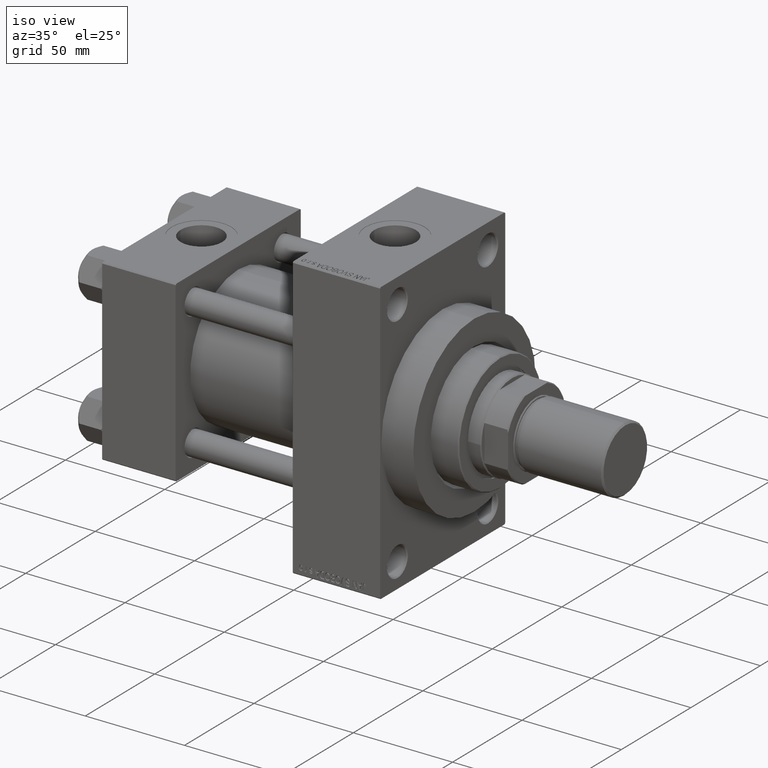
[diagram: clean part render]
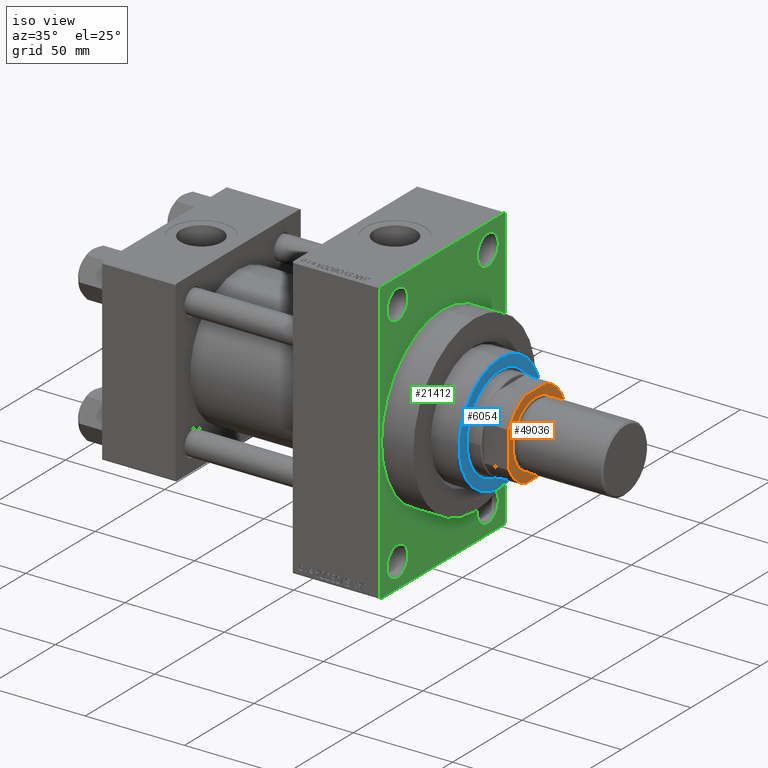
[diagram: same view with three faces highlighted in distinct colors, each labeled with its STEP entity id]
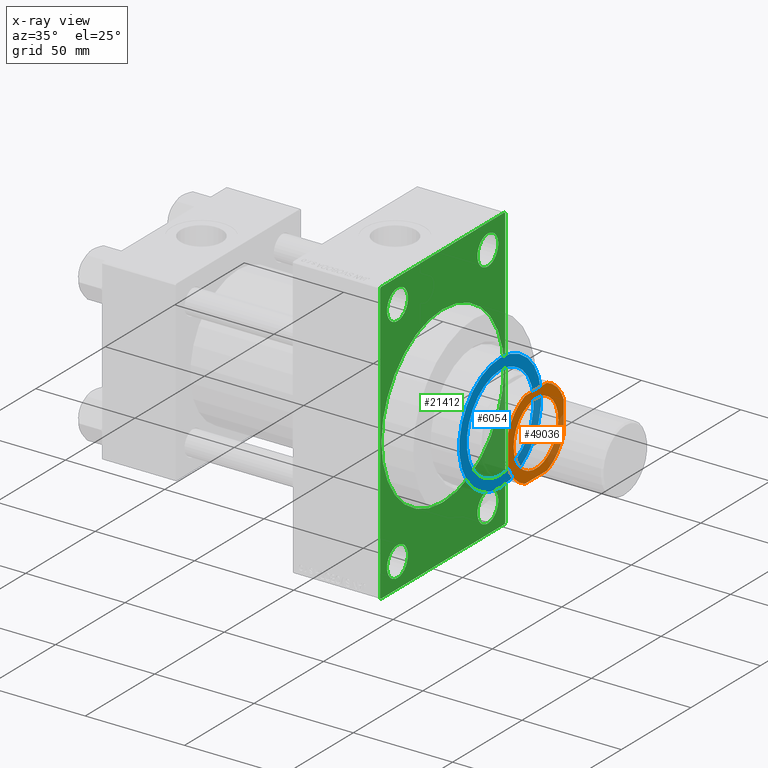
[diagram: x-ray of the same camera — body ghosted, the three highlighted faces saturated]
A machine part, iso view with three faces highlighted in distinct colors.
The next image is the same camera in x-ray (body ghosted, the three faces saturated) — at least one of them is partly hidden behind the body in this view.
Their STEP definitions:

[orange] entity #49036 — the highlighted planar face has unit normal (1, 0, 0).
#6 = CARTESIAN_POINT ( 'NONE',  ( 0.000000000000000000, 0.000000000000000000, 150.0000000000000284 ) ) ;
#97 = EDGE_LOOP ( 'NONE', ( #25113, #18557 ) ) ;
#490 = DIRECTION ( 'NONE',  ( 1.000000000000000000, 0.000000000000000000, 0.000000000000000000 ) ) ;
#755 = CARTESIAN_POINT ( 'NONE',  ( 0.000000000000000000, 0.000000000000000000, 150.0000000000000284 ) ) ;
#1407 = CARTESIAN_POINT ( 'NONE',  ( -20.00000000000000000, -7.889866919029812742, 150.0000000000000284 ) ) ;
#2478 = ORIENTED_EDGE ( 'NONE', *, *, #31564, .T. ) ;
#3204 = CIRCLE ( 'NONE', #4837, 16.05000000000002203 ) ;
#3367 = DIRECTION ( 'NONE',  ( -0.000000000000000000, 0.000000000000000000, 1.000000000000000000 ) ) ;
#4064 = EDGE_CURVE ( 'NONE', #39845, #41002, #34109, .T. ) ;
#4402 = CARTESIAN_POINT ( 'NONE',  ( 0.000000000000000000, 0.000000000000000000, 150.0000000000000284 ) ) ;
#4837 = AXIS2_PLACEMENT_3D ( 'NONE', #33293, #29282, #10701 ) ;
#4985 = DIRECTION ( 'NONE',  ( 1.734723475976807094E-16, -1.000000000000000000, 0.000000000000000000 ) ) ;
#6907 = ORIENTED_EDGE ( 'NONE', *, *, #7904, .T. ) ;
#7079 = AXIS2_PLACEMENT_3D ( 'NONE', #30050, #32835, #45391 ) ;
#7322 = PLANE ( 'NONE',  #9237 ) ;
#7342 = CARTESIAN_POINT ( 'NONE',  ( -19.99999999999999645, -20.00000000000000000, 150.0000000000000284 ) ) ;
#7904 = EDGE_CURVE ( 'NONE', #48579, #44395, #47942, .T. ) ;
#9237 = AXIS2_PLACEMENT_3D ( 'NONE', #6, #31147, #490 ) ;
#9617 = CARTESIAN_POINT ( 'NONE',  ( 16.05000000000002203, 0.000000000000000000, 150.0000000000000284 ) ) ;
#10701 = DIRECTION ( 'NONE',  ( 1.000000000000000000, 0.000000000000000000, 0.000000000000000000 ) ) ;
#11739 = AXIS2_PLACEMENT_3D ( 'NONE', #755, #46271, #46016 ) ;
#13253 = VECTOR ( 'NONE', #41790, 1000.000000000000000 ) ;
#13350 = CIRCLE ( 'NONE', #11739, 21.49999999999996447 ) ;
#13531 = LINE ( 'NONE', #28846, #46983 ) ;
#13803 = ORIENTED_EDGE ( 'NONE', *, *, #24491, .T. ) ;
#13876 = DIRECTION ( 'NONE',  ( 1.000000000000000000, 0.000000000000000000, 0.000000000000000000 ) ) ;
#14871 = AXIS2_PLACEMENT_3D ( 'NONE', #17043, #32360, #47702 ) ;
#15722 = DIRECTION ( 'NONE',  ( -1.734723475976807094E-16, 1.000000000000000000, -0.000000000000000000 ) ) ;
#17043 = CARTESIAN_POINT ( 'NONE',  ( 0.000000000000000000, 0.000000000000000000, 150.0000000000000284 ) ) ;
#17519 = VERTEX_POINT ( 'NONE', #44468 ) ;
#18557 = ORIENTED_EDGE ( 'NONE', *, *, #22583, .T. ) ;
#19003 = LINE ( 'NONE', #34319, #30264 ) ;
#19492 = DIRECTION ( 'NONE',  ( -0.000000000000000000, 0.000000000000000000, 1.000000000000000000 ) ) ;
#22583 = EDGE_CURVE ( 'NONE', #47442, #34347, #36506, .T. ) ;
#23627 = FACE_BOUND ( 'NONE', #97, .T. ) ;
#24391 = EDGE_CURVE ( 'NONE', #41002, #45623, #25688, .T. ) ;
#24491 = EDGE_CURVE ( 'NONE', #45623, #41853, #13350, .T. ) ;
#25113 = ORIENTED_EDGE ( 'NONE', *, *, #36498, .T. ) ;
#25688 = LINE ( 'NONE', #7342, #47850 ) ;
#25939 = ORIENTED_EDGE ( 'NONE', *, *, #4064, .T. ) ;
#25990 = EDGE_CURVE ( 'NONE', #44395, #39845, #13531, .T. ) ;
#26549 = DIRECTION ( 'NONE',  ( 1.000000000000000000, 0.000000000000000000, 0.000000000000000000 ) ) ;
#26657 = ORIENTED_EDGE ( 'NONE', *, *, #24391, .T. ) ;
#28623 = CARTESIAN_POINT ( 'NONE',  ( -7.889866919029809189, -20.00000000000000000, 150.0000000000000284 ) ) ;
#28846 = CARTESIAN_POINT ( 'NONE',  ( -20.00000000000000355, 20.00000000000000000, 150.0000000000000284 ) ) ;
#29282 = DIRECTION ( 'NONE',  ( 0.000000000000000000, -0.000000000000000000, -1.000000000000000000 ) ) ;
#29983 = CARTESIAN_POINT ( 'NONE',  ( 20.00000000000000000, -7.889866919029643100, 150.0000000000000284 ) ) ;
#30050 = CARTESIAN_POINT ( 'NONE',  ( 0.000000000000000000, 0.000000000000000000, 150.0000000000000284 ) ) ;
#30264 = VECTOR ( 'NONE', #15722, 1000.000000000000000 ) ;
#30655 = FACE_OUTER_BOUND ( 'NONE', #33990, .T. ) ;
#30700 = EDGE_CURVE ( 'NONE', #41853, #39908, #19003, .T. ) ;
#31147 = DIRECTION ( 'NONE',  ( -0.000000000000000000, 0.000000000000000000, 1.000000000000000000 ) ) ;
#31564 = EDGE_CURVE ( 'NONE', #39908, #17519, #36734, .T. ) ;
#32360 = DIRECTION ( 'NONE',  ( 0.000000000000000000, -0.000000000000000000, -1.000000000000000000 ) ) ;
#32835 = DIRECTION ( 'NONE',  ( -0.000000000000000000, 0.000000000000000000, 1.000000000000000000 ) ) ;
#33293 = CARTESIAN_POINT ( 'NONE',  ( 0.000000000000000000, 0.000000000000000000, 150.0000000000000284 ) ) ;
#33990 = EDGE_LOOP ( 'NONE', ( #42284, #2478, #35991, #6907, #49495, #25939, #26657, #13803 ) ) ;
#34109 = CIRCLE ( 'NONE', #42145, 21.50000000000002132 ) ;
#34319 = CARTESIAN_POINT ( 'NONE',  ( 19.99999999999999645, 20.00000000000000000, 150.0000000000000284 ) ) ;
#34347 = VERTEX_POINT ( 'NONE', #9617 ) ;
#35991 = ORIENTED_EDGE ( 'NONE', *, *, #48426, .T. ) ;
#36498 = EDGE_CURVE ( 'NONE', #34347, #47442, #3204, .T. ) ;
#36506 = CIRCLE ( 'NONE', #14871, 16.05000000000002203 ) ;
#36734 = CIRCLE ( 'NONE', #7079, 21.50000000000002132 ) ;
#37816 = CARTESIAN_POINT ( 'NONE',  ( 0.000000000000000000, 0.000000000000000000, 150.0000000000000284 ) ) ;
#38264 = CARTESIAN_POINT ( 'NONE',  ( 20.00000000000000000, 7.889866919029812742, 150.0000000000000284 ) ) ;
#39259 = CARTESIAN_POINT ( 'NONE',  ( -7.889866919029809189, 20.00000000000000000, 150.0000000000000284 ) ) ;
#39845 = VERTEX_POINT ( 'NONE', #1407 ) ;
#39908 = VERTEX_POINT ( 'NONE', #38264 ) ;
#41002 = VERTEX_POINT ( 'NONE', #28623 ) ;
#41520 = AXIS2_PLACEMENT_3D ( 'NONE', #37816, #3367, #45600 ) ;
#41548 = CARTESIAN_POINT ( 'NONE',  ( -20.00000000000000355, 20.00000000000000000, 150.0000000000000284 ) ) ;
#41790 = DIRECTION ( 'NONE',  ( -1.000000000000000000, -0.000000000000000000, -0.000000000000000000 ) ) ;
#41853 = VERTEX_POINT ( 'NONE', #29983 ) ;
#42145 = AXIS2_PLACEMENT_3D ( 'NONE', #4402, #19492, #26549 ) ;
#42284 = ORIENTED_EDGE ( 'NONE', *, *, #30700, .T. ) ;
#42636 = CARTESIAN_POINT ( 'NONE',  ( 7.889866919029648429, -20.00000000000000000, 150.0000000000000284 ) ) ;
#44395 = VERTEX_POINT ( 'NONE', #46219 ) ;
#44468 = CARTESIAN_POINT ( 'NONE',  ( 7.889866919029809189, 20.00000000000000000, 150.0000000000000284 ) ) ;
#45308 = LINE ( 'NONE', #41548, #13253 ) ;
#45391 = DIRECTION ( 'NONE',  ( 1.000000000000000000, 0.000000000000000000, 0.000000000000000000 ) ) ;
#45600 = DIRECTION ( 'NONE',  ( 1.000000000000000000, 0.000000000000000000, 0.000000000000000000 ) ) ;
#45623 = VERTEX_POINT ( 'NONE', #42636 ) ;
#46016 = DIRECTION ( 'NONE',  ( 1.000000000000000000, 0.000000000000000000, 0.000000000000000000 ) ) ;
#46219 = CARTESIAN_POINT ( 'NONE',  ( -20.00000000000000000, 7.889866919029805636, 150.0000000000000284 ) ) ;
#46271 = DIRECTION ( 'NONE',  ( -0.000000000000000000, 0.000000000000000000, 1.000000000000000000 ) ) ;
#46983 = VECTOR ( 'NONE', #4985, 1000.000000000000000 ) ;
#47442 = VERTEX_POINT ( 'NONE', #48901 ) ;
#47702 = DIRECTION ( 'NONE',  ( 1.000000000000000000, 0.000000000000000000, 0.000000000000000000 ) ) ;
#47850 = VECTOR ( 'NONE', #13876, 1000.000000000000000 ) ;
#47942 = CIRCLE ( 'NONE', #41520, 21.50000000000002132 ) ;
#48426 = EDGE_CURVE ( 'NONE', #17519, #48579, #45308, .T. ) ;
#48579 = VERTEX_POINT ( 'NONE', #39259 ) ;
#48901 = CARTESIAN_POINT ( 'NONE',  ( -16.05000000000002203, 1.965558112631504571E-15, 150.0000000000000284 ) ) ;
#49036 = ADVANCED_FACE ( 'NONE', ( #23627, #30655 ), #7322, .T. ) ;
#49495 = ORIENTED_EDGE ( 'NONE', *, *, #25990, .T. ) ;

[blue] entity #6054 — the highlighted planar face has unit normal (1, -0, -0).
#2003 = EDGE_CURVE ( 'NONE', #48557, #33665, #47710, .T. ) ;
#3180 = DIRECTION ( 'NONE',  ( 0.000000000000000000, 0.000000000000000000, 1.000000000000000000 ) ) ;
#4815 = CARTESIAN_POINT ( 'NONE',  ( 0.000000000000000000, 0.000000000000000000, 56.25999999999999801 ) ) ;
#5531 = DIRECTION ( 'NONE',  ( 0.000000000000000000, 0.000000000000000000, 1.000000000000000000 ) ) ;
#5771 = VERTEX_POINT ( 'NONE', #23910 ) ;
#6054 = ADVANCED_FACE ( 'NONE', ( #33333, #40153 ), #8376, .T. ) ;
#6069 = CIRCLE ( 'NONE', #12489, 24.00000000000000355 ) ;
#7729 = AXIS2_PLACEMENT_3D ( 'NONE', #37372, #3180, #37864 ) ;
#8376 = PLANE ( 'NONE',  #7729 ) ;
#9243 = DIRECTION ( 'NONE',  ( 1.000000000000000000, 0.000000000000000000, 0.000000000000000000 ) ) ;
#9386 = AXIS2_PLACEMENT_3D ( 'NONE', #45075, #48865, #18453 ) ;
#10622 = CARTESIAN_POINT ( 'NONE',  ( -29.50000000000001066, 0.000000000000000000, 56.25999999999999801 ) ) ;
#11012 = EDGE_CURVE ( 'NONE', #20939, #5771, #41477, .T. ) ;
#12489 = AXIS2_PLACEMENT_3D ( 'NONE', #4815, #20150, #32686 ) ;
#13564 = DIRECTION ( 'NONE',  ( 1.000000000000000000, 0.000000000000000000, 0.000000000000000000 ) ) ;
#15394 = ORIENTED_EDGE ( 'NONE', *, *, #23293, .F. ) ;
#16541 = ORIENTED_EDGE ( 'NONE', *, *, #2003, .F. ) ;
#17040 = CIRCLE ( 'NONE', #31446, 29.50000000000001066 ) ;
#18453 = DIRECTION ( 'NONE',  ( 1.000000000000000000, 0.000000000000000000, 0.000000000000000000 ) ) ;
#18804 = AXIS2_PLACEMENT_3D ( 'NONE', #21094, #5531, #13564 ) ;
#20150 = DIRECTION ( 'NONE',  ( 0.000000000000000000, 0.000000000000000000, 1.000000000000000000 ) ) ;
#20939 = VERTEX_POINT ( 'NONE', #10622 ) ;
#21094 = CARTESIAN_POINT ( 'NONE',  ( 0.000000000000000000, 0.000000000000000000, 56.25999999999999801 ) ) ;
#23293 = EDGE_CURVE ( 'NONE', #33665, #48557, #6069, .T. ) ;
#23910 = CARTESIAN_POINT ( 'NONE',  ( 29.50000000000001066, 3.643324227463376180E-15, 56.25999999999999801 ) ) ;
#25287 = CARTESIAN_POINT ( 'NONE',  ( -24.00000000000000355, 2.939152317953648289E-15, 56.25999999999999801 ) ) ;
#29065 = ORIENTED_EDGE ( 'NONE', *, *, #11012, .T. ) ;
#31446 = AXIS2_PLACEMENT_3D ( 'NONE', #39632, #35874, #9243 ) ;
#31848 = ORIENTED_EDGE ( 'NONE', *, *, #42312, .T. ) ;
#32686 = DIRECTION ( 'NONE',  ( 1.000000000000000000, 0.000000000000000000, 0.000000000000000000 ) ) ;
#33333 = FACE_BOUND ( 'NONE', #39714, .T. ) ;
#33665 = VERTEX_POINT ( 'NONE', #25287 ) ;
#35237 = CARTESIAN_POINT ( 'NONE',  ( 24.00000000000000355, 0.000000000000000000, 56.25999999999999801 ) ) ;
#35874 = DIRECTION ( 'NONE',  ( 0.000000000000000000, 0.000000000000000000, 1.000000000000000000 ) ) ;
#36024 = EDGE_LOOP ( 'NONE', ( #29065, #31848 ) ) ;
#37372 = CARTESIAN_POINT ( 'NONE',  ( 0.000000000000000000, 0.000000000000000000, 56.25999999999999801 ) ) ;
#37864 = DIRECTION ( 'NONE',  ( 1.000000000000000000, 0.000000000000000000, -0.000000000000000000 ) ) ;
#39632 = CARTESIAN_POINT ( 'NONE',  ( 0.000000000000000000, 0.000000000000000000, 56.25999999999999801 ) ) ;
#39714 = EDGE_LOOP ( 'NONE', ( #16541, #15394 ) ) ;
#40153 = FACE_OUTER_BOUND ( 'NONE', #36024, .T. ) ;
#41477 = CIRCLE ( 'NONE', #9386, 29.50000000000001066 ) ;
#42312 = EDGE_CURVE ( 'NONE', #5771, #20939, #17040, .T. ) ;
#45075 = CARTESIAN_POINT ( 'NONE',  ( 0.000000000000000000, 0.000000000000000000, 56.25999999999999801 ) ) ;
#47710 = CIRCLE ( 'NONE', #18804, 24.00000000000000355 ) ;
#48557 = VERTEX_POINT ( 'NONE', #35237 ) ;
#48865 = DIRECTION ( 'NONE',  ( 0.000000000000000000, 0.000000000000000000, 1.000000000000000000 ) ) ;

[green] entity #21412 — the highlighted planar face has unit normal (-1, 0, 0).
#312 = LINE ( 'NONE', #33759, #13001 ) ;
#442 = CIRCLE ( 'NONE', #30981, 7.499999999999936939 ) ;
#857 = VERTEX_POINT ( 'NONE', #49463 ) ;
#1081 = EDGE_CURVE ( 'NONE', #16116, #25070, #14763, .T. ) ;
#1168 = AXIS2_PLACEMENT_3D ( 'NONE', #31404, #46261, #27164 ) ;
#1379 = DIRECTION ( 'NONE',  ( -1.000000000000000000, 0.000000000000000000, -0.000000000000000000 ) ) ;
#1542 = CARTESIAN_POINT ( 'NONE',  ( 140.0000000000000000, 0.000000000000000000, 0.000000000000000000 ) ) ;
#1936 = EDGE_CURVE ( 'NONE', #48805, #22708, #42227, .T. ) ;
#2846 = EDGE_CURVE ( 'NONE', #28643, #45941, #45312, .T. ) ;
#2926 = CARTESIAN_POINT ( 'NONE',  ( 140.0000000000000000, -32.50000000000000000, 65.99999999999994316 ) ) ;
#2977 = CIRCLE ( 'NONE', #49534, 7.499999999999936939 ) ;
#3314 = EDGE_CURVE ( 'NONE', #45941, #28643, #19670, .T. ) ;
#3545 = EDGE_CURVE ( 'NONE', #6628, #28464, #40505, .T. ) ;
#4030 = CARTESIAN_POINT ( 'NONE',  ( 140.0000000000000000, 45.00000000000001421, -70.99999999999998579 ) ) ;
#4116 = EDGE_LOOP ( 'NONE', ( #9396, #21518 ) ) ;
#4256 = CARTESIAN_POINT ( 'NONE',  ( 140.0000000000000000, 45.00000000000002132, 71.00000000000000000 ) ) ;
#4684 = ORIENTED_EDGE ( 'NONE', *, *, #40836, .T. ) ;
#4685 = CARTESIAN_POINT ( 'NONE',  ( 140.0000000000000000, -44.49999999999995026, 70.99999999999998579 ) ) ;
#4989 = FACE_BOUND ( 'NONE', #4116, .T. ) ;
#5239 = CARTESIAN_POINT ( 'NONE',  ( 140.0000000000000000, -44.99999999999997158, 70.99999999999998579 ) ) ;
#5409 = VERTEX_POINT ( 'NONE', #49629 ) ;
#6078 = ORIENTED_EDGE ( 'NONE', *, *, #3545, .T. ) ;
#6628 = VERTEX_POINT ( 'NONE', #8439 ) ;
#6748 = CIRCLE ( 'NONE', #39638, 7.500000000000034639 ) ;
#7305 = CARTESIAN_POINT ( 'NONE',  ( 140.0000000000000000, -44.99999999999997158, 70.49999999999998579 ) ) ;
#7405 = DIRECTION ( 'NONE',  ( -1.000000000000000000, 0.000000000000000000, -0.000000000000000000 ) ) ;
#7590 = VECTOR ( 'NONE', #13062, 1000.000000000000000 ) ;
#7611 = DIRECTION ( 'NONE',  ( -1.000000000000000000, 0.000000000000000000, -0.000000000000000000 ) ) ;
#7616 = CIRCLE ( 'NONE', #11637, 44.00000000000000000 ) ;
#7888 = DIRECTION ( 'NONE',  ( 0.000000000000000000, -4.886545002751570165E-17, -1.000000000000000000 ) ) ;
#7909 = EDGE_CURVE ( 'NONE', #29463, #20288, #2977, .T. ) ;
#8172 = DIRECTION ( 'NONE',  ( 1.000000000000000000, 0.000000000000000000, 0.000000000000000000 ) ) ;
#8439 = CARTESIAN_POINT ( 'NONE',  ( 140.0000000000000000, 32.50000000000000711, -66.00000000000002842 ) ) ;
#8531 = EDGE_LOOP ( 'NONE', ( #9694, #19131 ) ) ;
#8749 = VERTEX_POINT ( 'NONE', #28237 ) ;
#8772 = FACE_BOUND ( 'NONE', #8531, .T. ) ;
#8882 = ORIENTED_EDGE ( 'NONE', *, *, #41773, .F. ) ;
#9166 = AXIS2_PLACEMENT_3D ( 'NONE', #33983, #7611, #49339 ) ;
#9396 = ORIENTED_EDGE ( 'NONE', *, *, #7909, .T. ) ;
#9575 = CARTESIAN_POINT ( 'NONE',  ( 140.0000000000000000, 32.50000000000000711, -58.50000000000000000 ) ) ;
#9694 = ORIENTED_EDGE ( 'NONE', *, *, #1081, .T. ) ;
#10834 = LINE ( 'NONE', #7305, #33960 ) ;
#11637 = AXIS2_PLACEMENT_3D ( 'NONE', #1542, #13374, #17126 ) ;
#12484 = VECTOR ( 'NONE', #12787, 1000.000000000000000 ) ;
#12787 = DIRECTION ( 'NONE',  ( 0.000000000000000000, 0.000000000000000000, -1.000000000000000000 ) ) ;
#13001 = VECTOR ( 'NONE', #7888, 1000.000000000000000 ) ;
#13062 = DIRECTION ( 'NONE',  ( 0.000000000000000000, -1.000000000000000000, -1.541976423090495633E-16 ) ) ;
#13374 = DIRECTION ( 'NONE',  ( 1.000000000000000000, 0.000000000000000000, 0.000000000000000000 ) ) ;
#14344 = EDGE_CURVE ( 'NONE', #857, #35427, #28561, .T. ) ;
#14476 = CARTESIAN_POINT ( 'NONE',  ( 140.0000000000000000, 44.50000000000002132, 71.00000000000000000 ) ) ;
#14763 = CIRCLE ( 'NONE', #9166, 7.499999999999936939 ) ;
#15191 = ORIENTED_EDGE ( 'NONE', *, *, #26017, .T. ) ;
#15252 = EDGE_CURVE ( 'NONE', #20288, #29463, #21120, .T. ) ;
#16116 = VERTEX_POINT ( 'NONE', #43774 ) ;
#16399 = ORIENTED_EDGE ( 'NONE', *, *, #2846, .T. ) ;
#16552 = FACE_OUTER_BOUND ( 'NONE', #46573, .T. ) ;
#16752 = AXIS2_PLACEMENT_3D ( 'NONE', #42591, #8172, #35058 ) ;
#16804 = CARTESIAN_POINT ( 'NONE',  ( 140.0000000000000000, 0.000000000000000000, 0.000000000000000000 ) ) ;
#17126 = DIRECTION ( 'NONE',  ( 0.000000000000000000, 0.000000000000000000, -1.000000000000000000 ) ) ;
#17565 = LINE ( 'NONE', #29845, #21031 ) ;
#17776 = EDGE_CURVE ( 'NONE', #21701, #5409, #10834, .T. ) ;
#17905 = EDGE_LOOP ( 'NONE', ( #6078, #38795 ) ) ;
#18841 = AXIS2_PLACEMENT_3D ( 'NONE', #9575, #47749, #44469 ) ;
#18996 = EDGE_CURVE ( 'NONE', #28464, #6628, #6748, .T. ) ;
#19131 = ORIENTED_EDGE ( 'NONE', *, *, #27725, .T. ) ;
#19289 = VECTOR ( 'NONE', #46484, 1000.000000000000000 ) ;
#19670 = CIRCLE ( 'NONE', #38922, 7.500000000000041744 ) ;
#20288 = VERTEX_POINT ( 'NONE', #48735 ) ;
#20658 = DIRECTION ( 'NONE',  ( -1.000000000000000000, 0.000000000000000000, -0.000000000000000000 ) ) ;
#20989 = DIRECTION ( 'NONE',  ( 0.000000000000000000, 0.000000000000000000, 1.000000000000000000 ) ) ;
#21031 = VECTOR ( 'NONE', #33364, 1000.000000000000000 ) ;
#21120 = CIRCLE ( 'NONE', #49212, 7.499999999999936939 ) ;
#21412 = ADVANCED_FACE ( 'NONE', ( #8772, #24097, #24338, #4989, #38676, #16552 ), #39663, .F. ) ;
#21518 = ORIENTED_EDGE ( 'NONE', *, *, #15252, .T. ) ;
#21701 = VERTEX_POINT ( 'NONE', #4685 ) ;
#22708 = VERTEX_POINT ( 'NONE', #48637 ) ;
#22742 = DIRECTION ( 'NONE',  ( 0.000000000000000000, 0.000000000000000000, 1.000000000000000000 ) ) ;
#24097 = FACE_BOUND ( 'NONE', #24425, .T. ) ;
#24338 = FACE_BOUND ( 'NONE', #17905, .T. ) ;
#24425 = EDGE_LOOP ( 'NONE', ( #16399, #36319 ) ) ;
#24768 = CARTESIAN_POINT ( 'NONE',  ( 140.0000000000000000, -32.50000000000000000, -58.49999999999999289 ) ) ;
#24867 = ORIENTED_EDGE ( 'NONE', *, *, #48816, .F. ) ;
#25070 = VERTEX_POINT ( 'NONE', #2926 ) ;
#25758 = VERTEX_POINT ( 'NONE', #26131 ) ;
#26017 = EDGE_CURVE ( 'NONE', #5409, #25758, #39659, .T. ) ;
#26131 = CARTESIAN_POINT ( 'NONE',  ( 140.0000000000000000, -44.99999999999997158, -70.50000000000000000 ) ) ;
#26382 = VECTOR ( 'NONE', #32814, 1000.000000000000114 ) ;
#26512 = CARTESIAN_POINT ( 'NONE',  ( 140.0000000000000000, 32.50000000000000711, 58.50000000000000711 ) ) ;
#26872 = AXIS2_PLACEMENT_3D ( 'NONE', #16804, #32117, #46464 ) ;
#27164 = DIRECTION ( 'NONE',  ( 0.000000000000000000, 0.000000000000000000, 1.000000000000000000 ) ) ;
#27725 = EDGE_CURVE ( 'NONE', #25070, #16116, #442, .T. ) ;
#28237 = CARTESIAN_POINT ( 'NONE',  ( 140.0000000000000000, 0.000000000000000000, 44.00000000000000000 ) ) ;
#28434 = DIRECTION ( 'NONE',  ( 0.000000000000000000, 0.000000000000000000, 1.000000000000000000 ) ) ;
#28464 = VERTEX_POINT ( 'NONE', #39840 ) ;
#28561 = LINE ( 'NONE', #14476, #26382 ) ;
#28643 = VERTEX_POINT ( 'NONE', #30745 ) ;
#28706 = ORIENTED_EDGE ( 'NONE', *, *, #41107, .T. ) ;
#29198 = EDGE_CURVE ( 'NONE', #48805, #42379, #35402, .T. ) ;
#29463 = VERTEX_POINT ( 'NONE', #36396 ) ;
#29845 = CARTESIAN_POINT ( 'NONE',  ( 140.0000000000000000, -44.49999999999997158, -71.00000000000000000 ) ) ;
#30745 = CARTESIAN_POINT ( 'NONE',  ( 140.0000000000000000, -32.50000000000000000, -66.00000000000001421 ) ) ;
#30981 = AXIS2_PLACEMENT_3D ( 'NONE', #39581, #35562, #35820 ) ;
#31404 = CARTESIAN_POINT ( 'NONE',  ( 140.0000000000000000, -32.50000000000000000, -58.49999999999999289 ) ) ;
#32117 = DIRECTION ( 'NONE',  ( -1.000000000000000000, 0.000000000000000000, -0.000000000000000000 ) ) ;
#32203 = CARTESIAN_POINT ( 'NONE',  ( 140.0000000000000000, 32.50000000000000711, 58.50000000000000711 ) ) ;
#32444 = CARTESIAN_POINT ( 'NONE',  ( 140.0000000000000000, 44.50000000000004263, -70.99999999999998579 ) ) ;
#32697 = CARTESIAN_POINT ( 'NONE',  ( 140.0000000000000000, -32.50000000000000000, -50.99999999999995737 ) ) ;
#32814 = DIRECTION ( 'NONE',  ( 0.000000000000000000, -0.7071067811865474617, 0.7071067811865474617 ) ) ;
#33045 = CARTESIAN_POINT ( 'NONE',  ( 140.0000000000000000, 5.388445916248353619E-15, -44.00000000000000000 ) ) ;
#33364 = DIRECTION ( 'NONE',  ( 0.000000000000000000, 0.7071067811865573427, -0.7071067811865378028 ) ) ;
#33759 = CARTESIAN_POINT ( 'NONE',  ( 140.0000000000000000, 45.00000000000002132, 71.00000000000000000 ) ) ;
#33827 = EDGE_CURVE ( 'NONE', #8749, #47417, #38421, .T. ) ;
#33960 = VECTOR ( 'NONE', #40977, 1000.000000000000000 ) ;
#33983 = CARTESIAN_POINT ( 'NONE',  ( 140.0000000000000000, -32.50000000000000000, 58.50000000000000711 ) ) ;
#34693 = ORIENTED_EDGE ( 'NONE', *, *, #1936, .F. ) ;
#35058 = DIRECTION ( 'NONE',  ( 0.000000000000000000, 0.000000000000000000, -1.000000000000000000 ) ) ;
#35201 = ORIENTED_EDGE ( 'NONE', *, *, #14344, .T. ) ;
#35402 = LINE ( 'NONE', #42943, #45485 ) ;
#35427 = VERTEX_POINT ( 'NONE', #46409 ) ;
#35562 = DIRECTION ( 'NONE',  ( -1.000000000000000000, 0.000000000000000000, -0.000000000000000000 ) ) ;
#35737 = DIRECTION ( 'NONE',  ( -1.000000000000000000, 0.000000000000000000, -0.000000000000000000 ) ) ;
#35820 = DIRECTION ( 'NONE',  ( 0.000000000000000000, 0.000000000000000000, 1.000000000000000000 ) ) ;
#36319 = ORIENTED_EDGE ( 'NONE', *, *, #3314, .T. ) ;
#36396 = CARTESIAN_POINT ( 'NONE',  ( 140.0000000000000000, 32.50000000000000711, 51.00000000000007105 ) ) ;
#38421 = CIRCLE ( 'NONE', #16752, 44.00000000000000000 ) ;
#38676 = FACE_BOUND ( 'NONE', #41503, .T. ) ;
#38795 = ORIENTED_EDGE ( 'NONE', *, *, #18996, .T. ) ;
#38922 = AXIS2_PLACEMENT_3D ( 'NONE', #24768, #1379, #20989 ) ;
#38938 = LINE ( 'NONE', #4256, #19289 ) ;
#39356 = ORIENTED_EDGE ( 'NONE', *, *, #29198, .T. ) ;
#39425 = DIRECTION ( 'NONE',  ( -0.000000000000000000, 0.7071067811865574537, 0.7071067811865376918 ) ) ;
#39499 = ORIENTED_EDGE ( 'NONE', *, *, #33827, .F. ) ;
#39581 = CARTESIAN_POINT ( 'NONE',  ( 140.0000000000000000, -32.50000000000000000, 58.50000000000000711 ) ) ;
#39638 = AXIS2_PLACEMENT_3D ( 'NONE', #47287, #20658, #28434 ) ;
#39659 = LINE ( 'NONE', #5239, #12484 ) ;
#39663 = PLANE ( 'NONE',  #26872 ) ;
#39840 = CARTESIAN_POINT ( 'NONE',  ( 140.0000000000000000, 32.50000000000000711, -50.99999999999996447 ) ) ;
#40505 = CIRCLE ( 'NONE', #18841, 7.500000000000034639 ) ;
#40836 = EDGE_CURVE ( 'NONE', #35427, #21701, #38938, .T. ) ;
#40977 = DIRECTION ( 'NONE',  ( -0.000000000000000000, -0.7071067811865426878, -0.7071067811865524577 ) ) ;
#41107 = EDGE_CURVE ( 'NONE', #25758, #22708, #17565, .T. ) ;
#41503 = EDGE_LOOP ( 'NONE', ( #39499, #24867 ) ) ;
#41620 = CARTESIAN_POINT ( 'NONE',  ( 140.0000000000000000, 45.00000000000001421, -70.50000000000001421 ) ) ;
#41773 = EDGE_CURVE ( 'NONE', #857, #42379, #312, .T. ) ;
#42227 = LINE ( 'NONE', #4030, #7590 ) ;
#42379 = VERTEX_POINT ( 'NONE', #41620 ) ;
#42591 = CARTESIAN_POINT ( 'NONE',  ( 140.0000000000000000, 0.000000000000000000, 0.000000000000000000 ) ) ;
#42943 = CARTESIAN_POINT ( 'NONE',  ( 140.0000000000000000, 45.00000000000001421, -70.50000000000001421 ) ) ;
#43023 = DIRECTION ( 'NONE',  ( 0.000000000000000000, 0.000000000000000000, 1.000000000000000000 ) ) ;
#43774 = CARTESIAN_POINT ( 'NONE',  ( 140.0000000000000000, -32.50000000000000000, 51.00000000000007105 ) ) ;
#44469 = DIRECTION ( 'NONE',  ( 0.000000000000000000, 0.000000000000000000, 1.000000000000000000 ) ) ;
#45312 = CIRCLE ( 'NONE', #1168, 7.500000000000041744 ) ;
#45485 = VECTOR ( 'NONE', #39425, 999.9999999999998863 ) ;
#45503 = ORIENTED_EDGE ( 'NONE', *, *, #17776, .T. ) ;
#45941 = VERTEX_POINT ( 'NONE', #32697 ) ;
#46261 = DIRECTION ( 'NONE',  ( -1.000000000000000000, 0.000000000000000000, -0.000000000000000000 ) ) ;
#46409 = CARTESIAN_POINT ( 'NONE',  ( 140.0000000000000000, 44.50000000000002132, 71.00000000000000000 ) ) ;
#46464 = DIRECTION ( 'NONE',  ( -0.000000000000000000, 0.000000000000000000, 1.000000000000000000 ) ) ;
#46484 = DIRECTION ( 'NONE',  ( 0.000000000000000000, -1.000000000000000000, -1.541976423090495387E-16 ) ) ;
#46573 = EDGE_LOOP ( 'NONE', ( #15191, #28706, #34693, #39356, #8882, #35201, #4684, #45503 ) ) ;
#47287 = CARTESIAN_POINT ( 'NONE',  ( 140.0000000000000000, 32.50000000000000711, -58.50000000000000000 ) ) ;
#47417 = VERTEX_POINT ( 'NONE', #33045 ) ;
#47749 = DIRECTION ( 'NONE',  ( -1.000000000000000000, 0.000000000000000000, -0.000000000000000000 ) ) ;
#48637 = CARTESIAN_POINT ( 'NONE',  ( 140.0000000000000000, -44.49999999999994316, -71.00000000000000000 ) ) ;
#48735 = CARTESIAN_POINT ( 'NONE',  ( 140.0000000000000000, 32.50000000000000711, 65.99999999999994316 ) ) ;
#48805 = VERTEX_POINT ( 'NONE', #32444 ) ;
#48816 = EDGE_CURVE ( 'NONE', #47417, #8749, #7616, .T. ) ;
#49212 = AXIS2_PLACEMENT_3D ( 'NONE', #32203, #35737, #43023 ) ;
#49339 = DIRECTION ( 'NONE',  ( 0.000000000000000000, 0.000000000000000000, 1.000000000000000000 ) ) ;
#49463 = CARTESIAN_POINT ( 'NONE',  ( 140.0000000000000000, 45.00000000000002132, 70.50000000000000000 ) ) ;
#49534 = AXIS2_PLACEMENT_3D ( 'NONE', #26512, #7405, #22742 ) ;
#49629 = CARTESIAN_POINT ( 'NONE',  ( 140.0000000000000000, -44.99999999999997158, 70.49999999999998579 ) ) ;